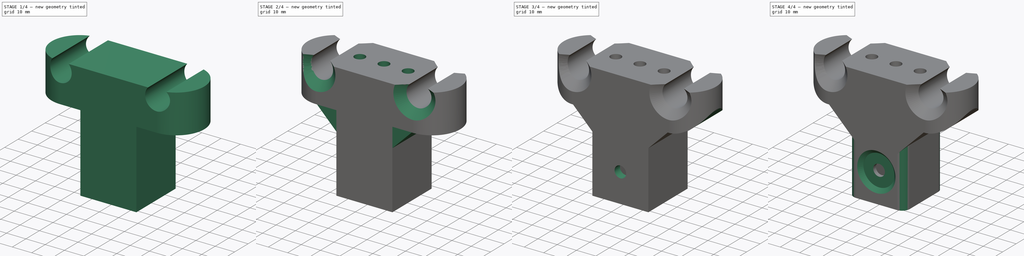
[diagram: build sequence overview — one tinted view per stage of 4, left to right]
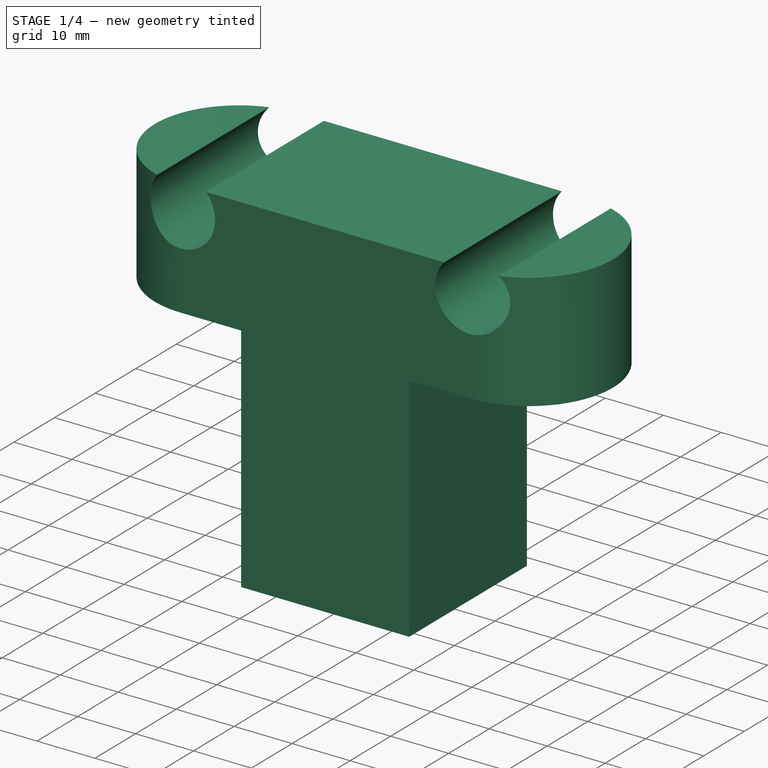
[diagram: stage 1 of 4 — iso view after this stage's code; geometry added in this stage tinted green]
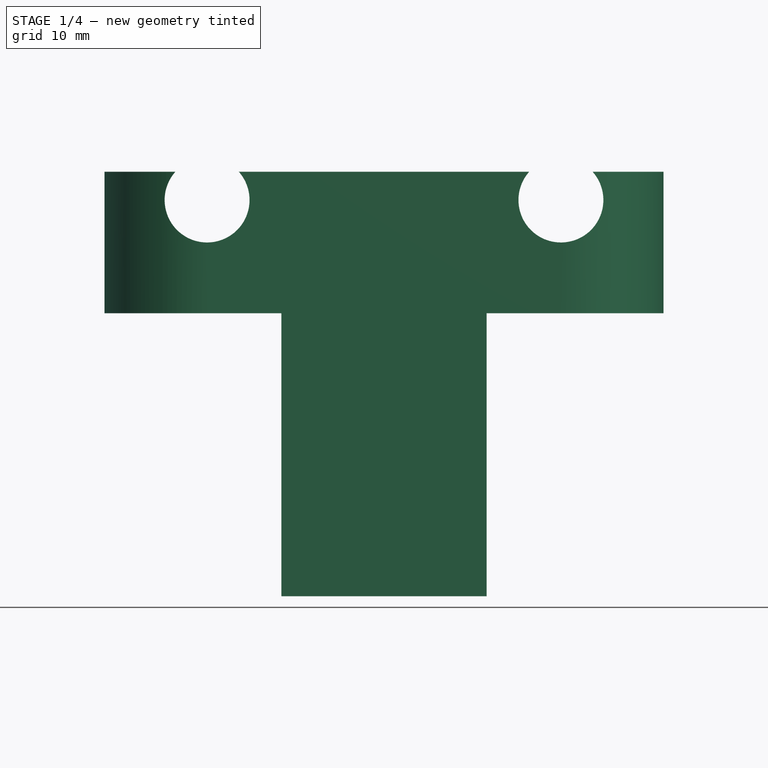
[diagram: stage 1 of 4 — front view after this stage's code; geometry added in this stage tinted green]
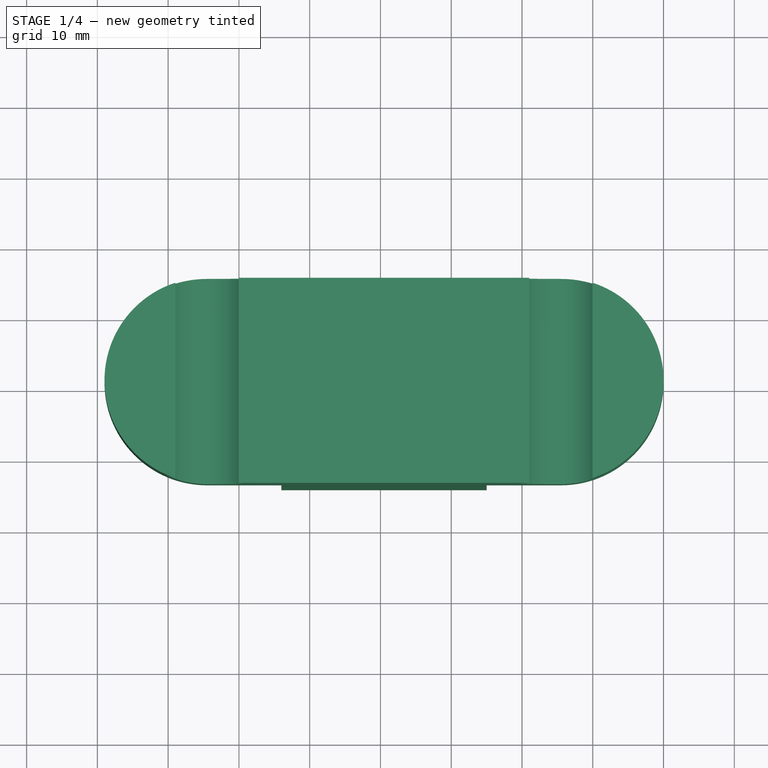
[diagram: stage 1 of 4 — top view after this stage's code; geometry added in this stage tinted green]
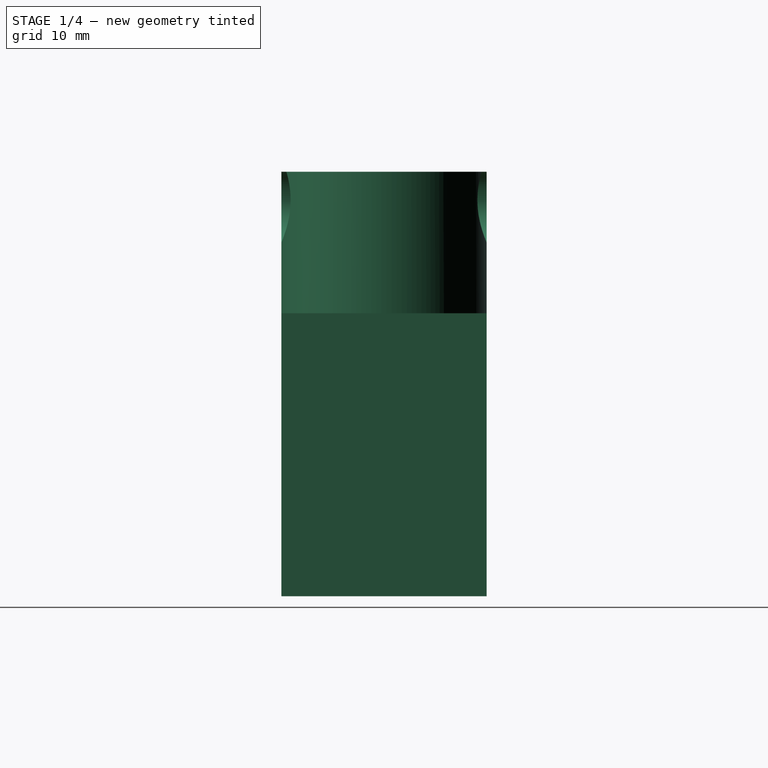
[diagram: stage 1 of 4 — right view after this stage's code; geometry added in this stage tinted green]
FCSTD DOCUMENT  (FreeCAD 0.16R5861 (Git))
Label: harness_holder_bottom_v1.0
License: All rights reserved
LicenseURL: http://en.wikipedia.org/wiki/All_rights_reserved
objects: Sketcher::SketchObject×8, PartDesign::Pocket×6, PartDesign::Chamfer×4, PartDesign::Pad×2, PartDesign::Fillet×1
note: 29 computed .brp shape members not serialized (recipe doc carries the construction recipe); baked Part::Feature solids carry a one-line shape summary decoded from their .brp

FEATURE [Sketcher::SketchObject] Sketch
  sketch-geometry (8):
    g0: LineSegment StartX=0 StartY=0 StartZ=0 EndX=21 EndY=0 EndZ=0
    g1: LineSegment StartX=21 StartY=0 StartZ=0 EndX=21 EndY=21 EndZ=0
    g2: LineSegment StartX=21 StartY=21 StartZ=0 EndX=0 EndY=21 EndZ=0
    g3: LineSegment StartX=0 StartY=21 StartZ=0 EndX=0 EndY=0 EndZ=0
    g4: LineSegment StartX=-4 StartY=-4 StartZ=0 EndX=25 EndY=-4 EndZ=0
    g5: LineSegment StartX=25 StartY=-4 StartZ=0 EndX=25 EndY=25 EndZ=0
    g6: LineSegment StartX=25 StartY=25 StartZ=0 EndX=-4 EndY=25 EndZ=0
    g7: LineSegment StartX=-4 StartY=25 StartZ=0 EndX=-4 EndY=-4 EndZ=0
  constraints (23):
    c: Coincident(g0,g1)
    c: Coincident(g1,g2)
    c: Coincident(g2,g3)
    c: Coincident(g3,g0)
    c: Horizontal(g0)
    c: Horizontal(g2)
    c: Vertical(g1)
    c: Vertical(g3)
    c: Coincident(g0,g-1)
    c: Equal(g3,g2)
    c: DistanceX(g2) = -21
    c: Coincident(g4,g5)
    c: Coincident(g5,g6)
    c: Coincident(g6,g7)
    c: Coincident(g7,g4)
    c: Horizontal(g4)
    c: Horizontal(g6)
    c: Vertical(g5)
    c: Vertical(g7)
    c: DistanceX(g4) = -4
    c: DistanceY(g4) = -4
    c: DistanceX(g4) = 29
    c: Equal(g7,g4)
FEATURE [PartDesign::Pad] Pad
  Length = 40
  Length2 = 100
  Sketch = -> Sketch
  Type = 0
FEATURE [Sketcher::SketchObject] Sketch001
  ExternalGeometry = -> [Pad]
  Placement = pos=(0,0,40) rot=(0,0,1;0rad)
  Support = -> Pad [Face10]
  sketch-geometry (8):
    g0: ArcOfCircle CenterX=-14.5 CenterY=10.5 CenterZ=0 NormalX=0 NormalY=0 NormalZ=1 Radius=14.5 StartAngle=1.5708 EndAngle=4.71239
    g1: ArcOfCircle CenterX=35.5 CenterY=10.5 CenterZ=0 NormalX=0 NormalY=0 NormalZ=1 Radius=14.5 StartAngle=4.71239 EndAngle=7.85398
    g2: LineSegment StartX=-14.5 StartY=-4 StartZ=0 EndX=35.5 EndY=-4 EndZ=0
    g3: LineSegment StartX=-14.5 StartY=25 StartZ=0 EndX=35.5 EndY=25 EndZ=0
    g4: LineSegment [constr] StartX=-4 StartY=25 StartZ=0 EndX=10.5 EndY=10.5 EndZ=0
    g5: LineSegment [constr] StartX=10.5 StartY=10.5 StartZ=0 EndX=25 EndY=-4 EndZ=0
    g6: LineSegment [constr] StartX=-14.5 StartY=10.5 StartZ=0 EndX=10.5 EndY=10.5 EndZ=0
    g7: LineSegment [constr] StartX=10.5 StartY=10.5 StartZ=0 EndX=35.5 EndY=10.5 EndZ=0
  constraints (19):
    c: Tangent(g0,g3) = 1.5708
    c: Tangent(g0,g2) = -1.5708
    c: Tangent(g2,g1) = -1.5708
    c: Tangent(g3,g1) = 1.5708
    c: Horizontal(g2)
    c: Equal(g0,g1)
    c: PointOnObject(g-3,g3)
    c: PointOnObject(g-4,g2)
    c: Coincident(g-3,g4)
    c: Coincident(g4,g5)
    c: Coincident(g5,g-4)
    c: Equal(g5,g4)
    c: PointOnObject(g5,g4)
    c: Coincident(g6,g0)
    c: Coincident(g6,g4)
    c: Coincident(g6,g7)
    c: Coincident(g7,g1)
    c: Equal(g6,g7)
    c: DistanceX(g0,g1) = 50
FEATURE [PartDesign::Pad] Pad001
  Length = 20
  Length2 = 100
  Sketch = -> Sketch001
  Type = 0
FEATURE [Sketcher::SketchObject] Sketch002
  ExternalGeometry = -> [Pad001]
  Placement = pos=(0,-4,0) rot=(1,0,0;1.5708rad)
  Support = -> Pad001 [Face10]
  sketch-geometry (2):
    g0: Circle CenterX=-14.5 CenterY=56 CenterZ=0 NormalX=0 NormalY=0 NormalZ=1 Radius=6
    g1: Circle CenterX=35.5 CenterY=56 CenterZ=0 NormalX=0 NormalY=0 NormalZ=1 Radius=6
  constraints (6):
    c: PointOnObject(g0,g-4)
    c: PointOnObject(g1,g-5)
    c: Equal(g1,g0)
    c: Radius(g0) = 6
    c: DistanceY(g0,g-4) = 4
    c: DistanceY(g1,g-5) = 4
FEATURE [PartDesign::Pocket] Pocket
  Length = 5
  Sketch = -> Sketch002
  Type = 1
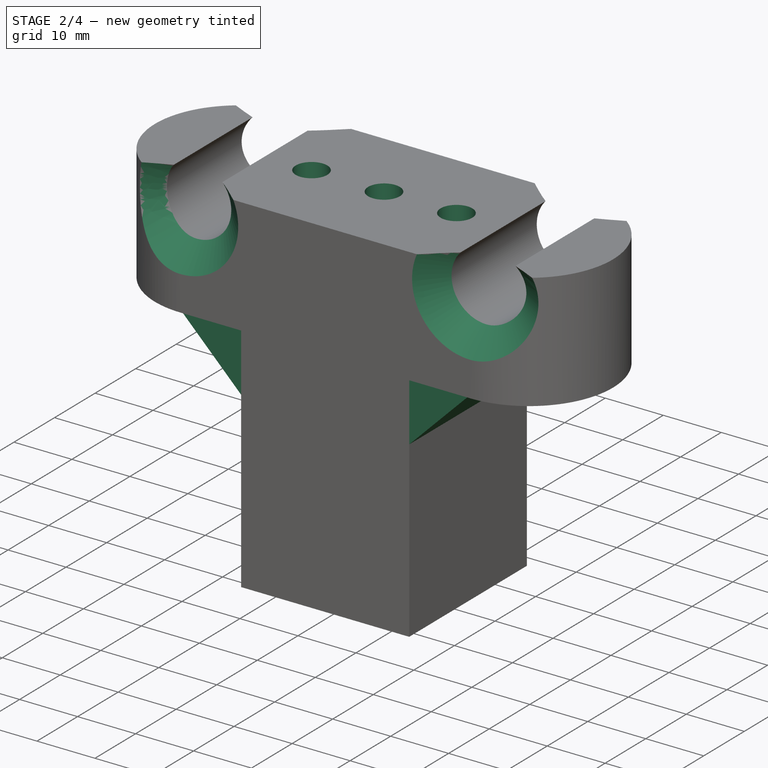
[diagram: stage 2 of 4 — iso view after this stage's code; geometry added in this stage tinted green]
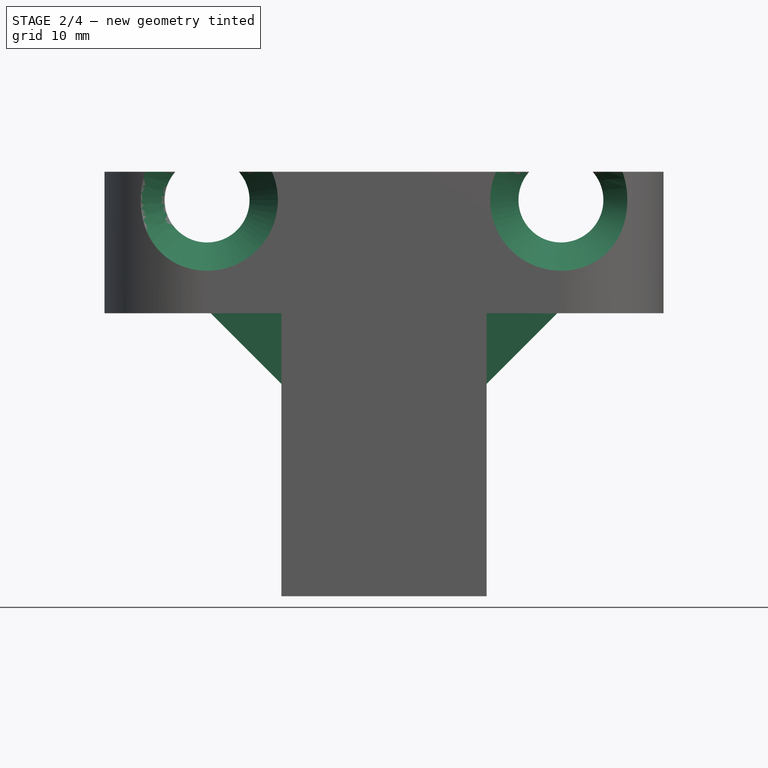
[diagram: stage 2 of 4 — front view after this stage's code; geometry added in this stage tinted green]
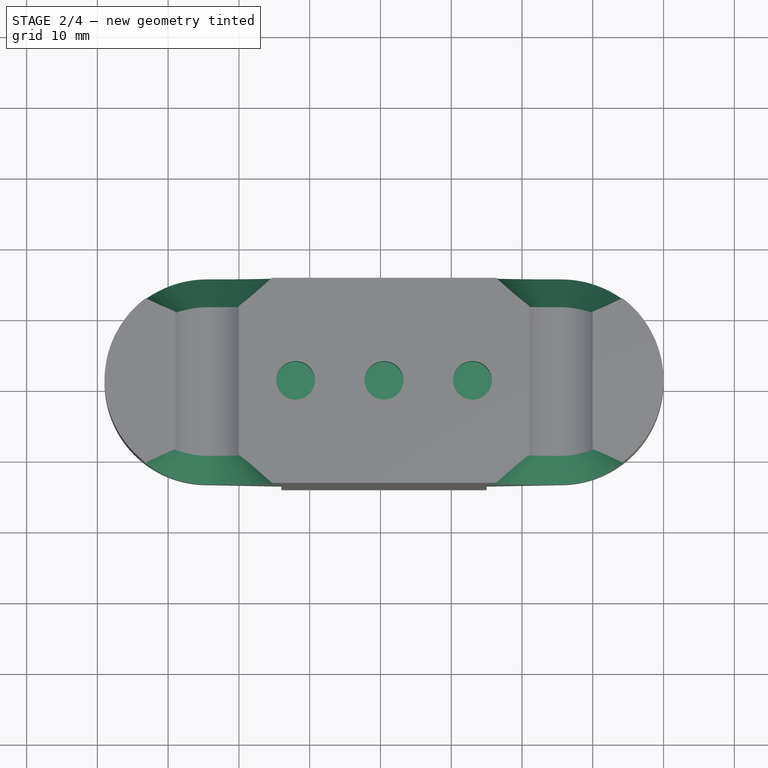
[diagram: stage 2 of 4 — top view after this stage's code; geometry added in this stage tinted green]
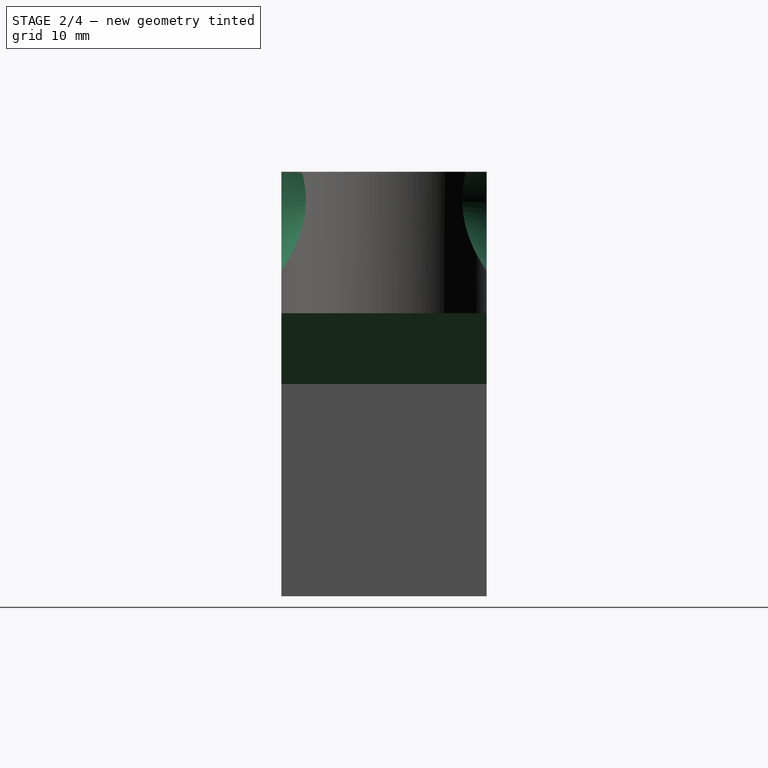
[diagram: stage 2 of 4 — right view after this stage's code; geometry added in this stage tinted green]
FEATURE [PartDesign::Chamfer] Chamfer
  Base = -> Pocket [Edge16,Edge12]
  Size = 10
FEATURE [PartDesign::Chamfer] Chamfer001
  Base = -> Chamfer [Edge22,Edge27,Edge50,Edge65]
  Size = 4
FEATURE [Sketcher::SketchObject] Sketch003
  ExternalGeometry = -> [Chamfer001]
  Placement = pos=(0,0,60) rot=(0,0,1;0rad)
  Support = -> Chamfer001 [Face7]
  sketch-geometry (7):
    g0: LineSegment [constr] StartX=-10.0279 StartY=21 StartZ=0 EndX=10.5 EndY=10.5 EndZ=0
    g1: LineSegment [constr] StartX=10.5 StartY=10.5 StartZ=0 EndX=31.0279 EndY=0 EndZ=0
    g2: Circle CenterX=10.5 CenterY=10.5 CenterZ=0 NormalX=0 NormalY=0 NormalZ=1 Radius=2.73
    g3: LineSegment [constr] StartX=10.5 StartY=10.5 StartZ=0 EndX=-2 EndY=10.5 EndZ=0
    g4: LineSegment [constr] StartX=10.5 StartY=10.5 StartZ=0 EndX=23 EndY=10.5 EndZ=0
    g5: Circle CenterX=-2 CenterY=10.5 CenterZ=0 NormalX=0 NormalY=0 NormalZ=1 Radius=2.73
    g6: Circle CenterX=23 CenterY=10.5 CenterZ=0 NormalX=0 NormalY=0 NormalZ=1 Radius=2.73
  constraints (17):
    c: Coincident(g-3,g0)
    c: Coincident(g0,g1)
    c: Coincident(g1,g-4)
    c: Equal(g1,g0)
    c: PointOnObject(g0,g1)
    c: Coincident(g2,g0)
    c: Coincident(g3,g0)
    c: Horizontal(g3)
    c: Coincident(g4,g0)
    c: Horizontal(g4)
    c: Equal(g4,g3)
    c: Coincident(g5,g3)
    c: Coincident(g6,g4)
    c: Equal(g5,g2)
    c: Equal(g2,g6)
    c: Radius(g2) = 2.73
    c: DistanceX(g3) = -12.5
FEATURE [PartDesign::Pocket] Pocket001
  Length = 7
  Sketch = -> Sketch003
  Type = 0
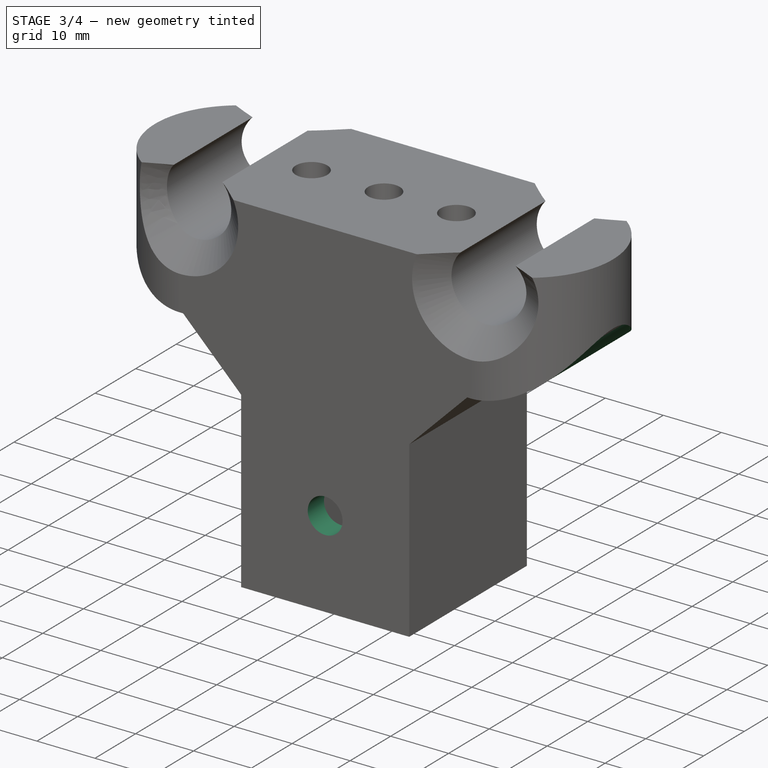
[diagram: stage 3 of 4 — iso view after this stage's code; geometry added in this stage tinted green]
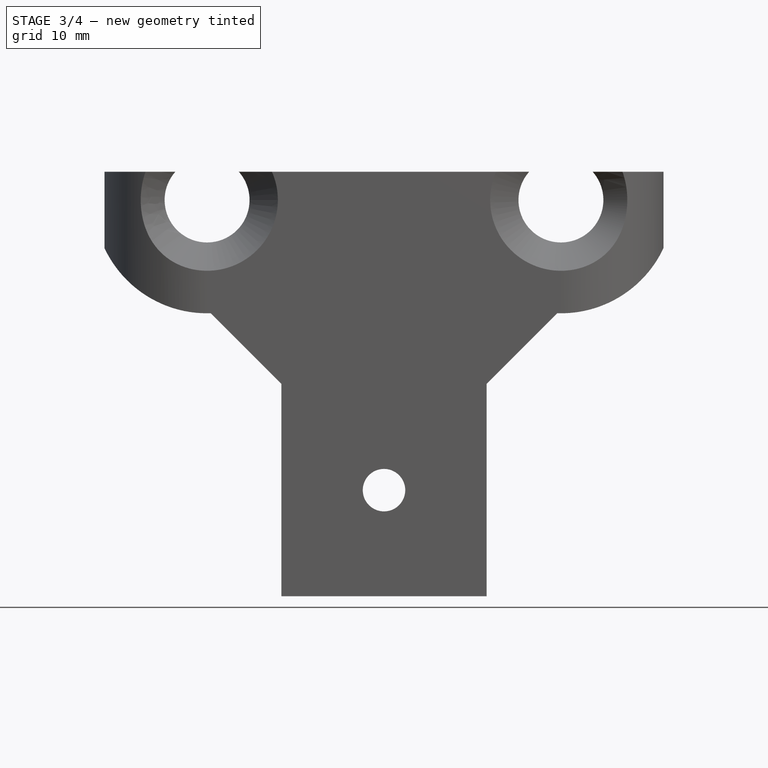
[diagram: stage 3 of 4 — front view after this stage's code; geometry added in this stage tinted green]
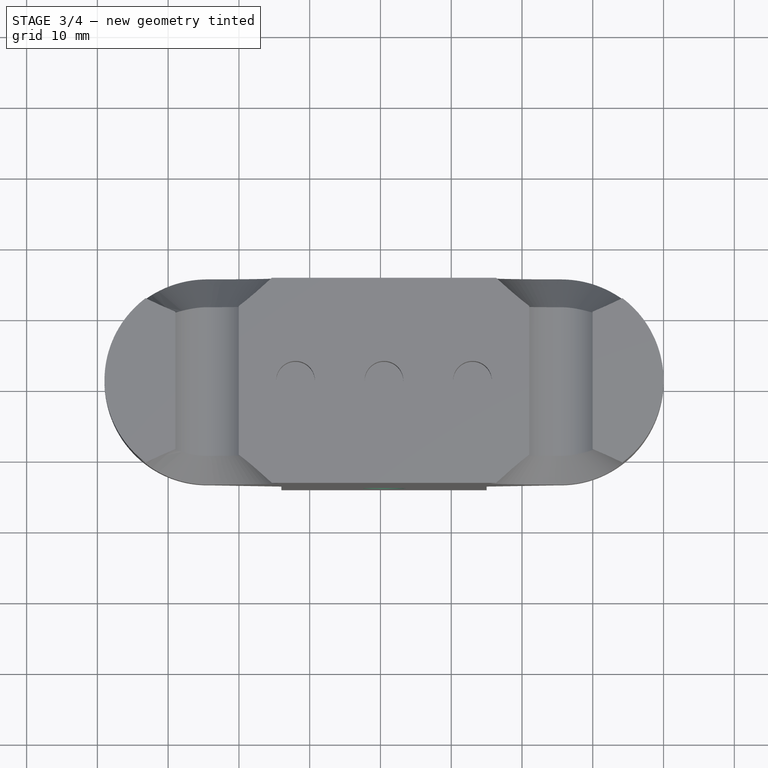
[diagram: stage 3 of 4 — top view after this stage's code; geometry added in this stage tinted green]
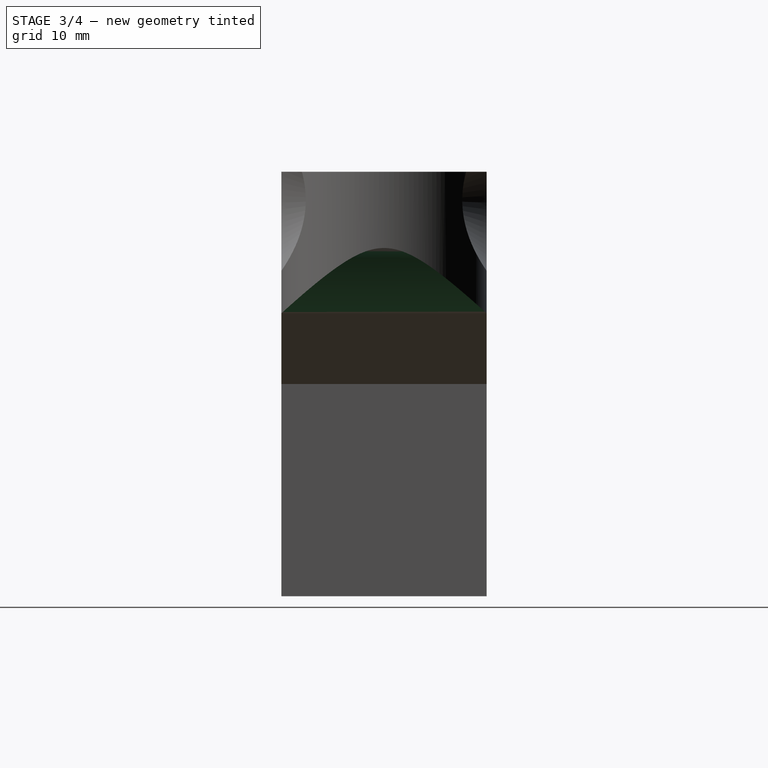
[diagram: stage 3 of 4 — right view after this stage's code; geometry added in this stage tinted green]
FEATURE [Sketcher::SketchObject] Sketch004
  ExternalGeometry = -> [Pocket001]
  Placement = pos=(0,-4,0) rot=(1,0,0;1.5708rad)
  Support = -> Pocket001 [Face1]
  sketch-geometry (6):
    g0: ArcOfCircle CenterX=-14.5 CenterY=56 CenterZ=0 NormalX=0 NormalY=0 NormalZ=1 Radius=16.0078 StartAngle=3.14159 EndAngle=4.74363
    g1: LineSegment StartX=-14 StartY=40 StartZ=0 EndX=-30.5078 EndY=40 EndZ=0
    g2: LineSegment StartX=-30.5078 StartY=40 StartZ=0 EndX=-30.5078 EndY=56 EndZ=0
    g3: ArcOfCircle CenterX=35.5 CenterY=56 CenterZ=0 NormalX=0 NormalY=0 NormalZ=1 Radius=16.0078 StartAngle=4.68115 EndAngle=6.28318
    g4: LineSegment StartX=35 StartY=40 StartZ=0 EndX=51.5078 EndY=40 EndZ=0
    g5: LineSegment StartX=51.5078 StartY=40 StartZ=0 EndX=51.5078 EndY=56 EndZ=0
  constraints (16):
    c: Coincident(g0,g-4)
    c: Coincident(g0,g-5)
    c: Coincident(g0,g1)
    c: Coincident(g1,g2)
    c: Coincident(g2,g0)
    c: Vertical(g2)
    c: Horizontal(g1)
    c: Tangent(g0,g2)
    c: Coincident(g3,g-3)
    c: Coincident(g3,g-6)
    c: Coincident(g3,g4)
    c: Coincident(g4,g5)
    c: Coincident(g5,g3)
    c: Vertical(g5)
    c: Horizontal(g4)
    c: Tangent(g5,g3)
FEATURE [PartDesign::Pocket] Pocket002
  Length = 3
  Sketch = -> Sketch004
  Type = 1
FEATURE [Sketcher::SketchObject] Sketch005
  ExternalGeometry = -> [Pocket002]
  Placement = pos=(0,25,0) rot=(0,0.707107,0.707107;3.14159rad)
  Support = -> Pocket002 [Face36]
  sketch-geometry (3):
    g0: LineSegment [constr] StartX=-25 StartY=30 StartZ=0 EndX=-10.5 EndY=15 EndZ=0
    g1: LineSegment [constr] StartX=-10.5 StartY=15 StartZ=0 EndX=4 EndY=0 EndZ=0
    g2: Circle CenterX=-10.5 CenterY=15 CenterZ=0 NormalX=0 NormalY=0 NormalZ=1 Radius=3
  constraints (7):
    c: Coincident(g-4,g0)
    c: Coincident(g0,g1)
    c: Coincident(g1,g-3)
    c: Equal(g1,g0)
    c: PointOnObject(g1,g0)
    c: Coincident(g2,g0)
    c: Radius(g2) = 3
FEATURE [PartDesign::Pocket] Pocket003
  Length = 5
  Sketch = -> Sketch005
  Type = 1
FEATURE [Sketcher::SketchObject] Sketch006
  ExternalGeometry = -> [Pocket003]
  Placement = pos=(0,25,0) rot=(0,0.707107,0.707107;3.14159rad)
  Support = -> Pocket003 [Face37]
  sketch-geometry (1):
    g0: Circle CenterX=-10.5 CenterY=15 CenterZ=0 NormalX=0 NormalY=0 NormalZ=1 Radius=8
  constraints (2):
    c: Coincident(g0,g-3)
    c: Radius(g0) = 8
FEATURE [PartDesign::Pocket] Pocket004
  Length = 2
  Sketch = -> Sketch006
  Type = 0
FEATURE [PartDesign::Chamfer] Chamfer002
  Base = -> Pocket004 [Edge106]
  Size = 1.9
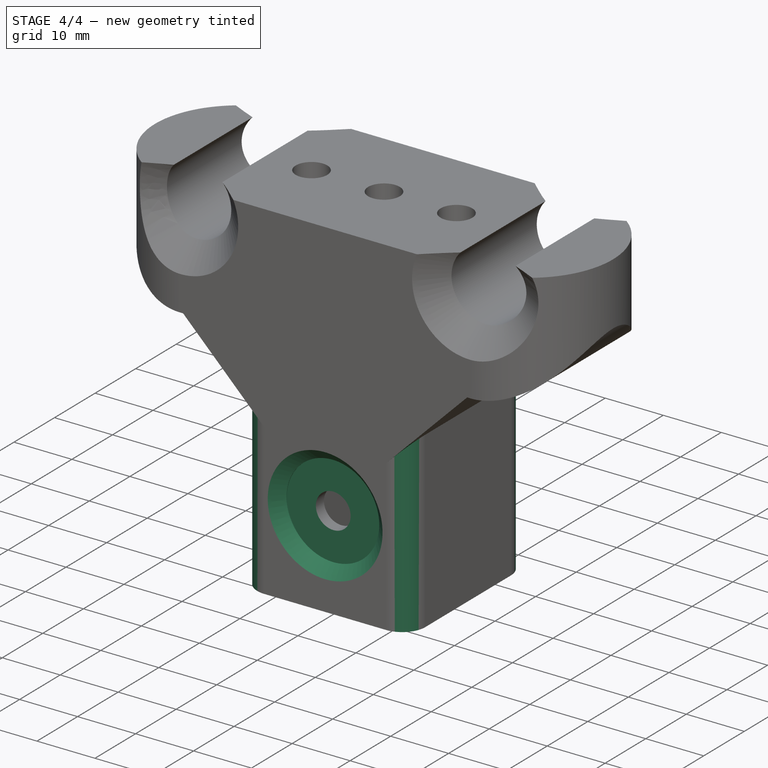
[diagram: stage 4 of 4 — iso view after this stage's code; geometry added in this stage tinted green]
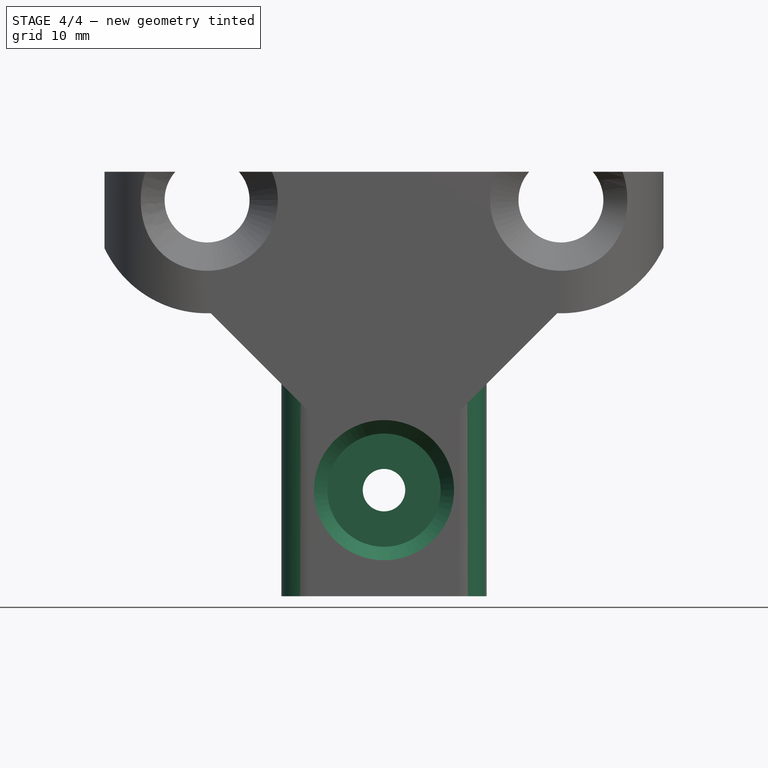
[diagram: stage 4 of 4 — front view after this stage's code; geometry added in this stage tinted green]
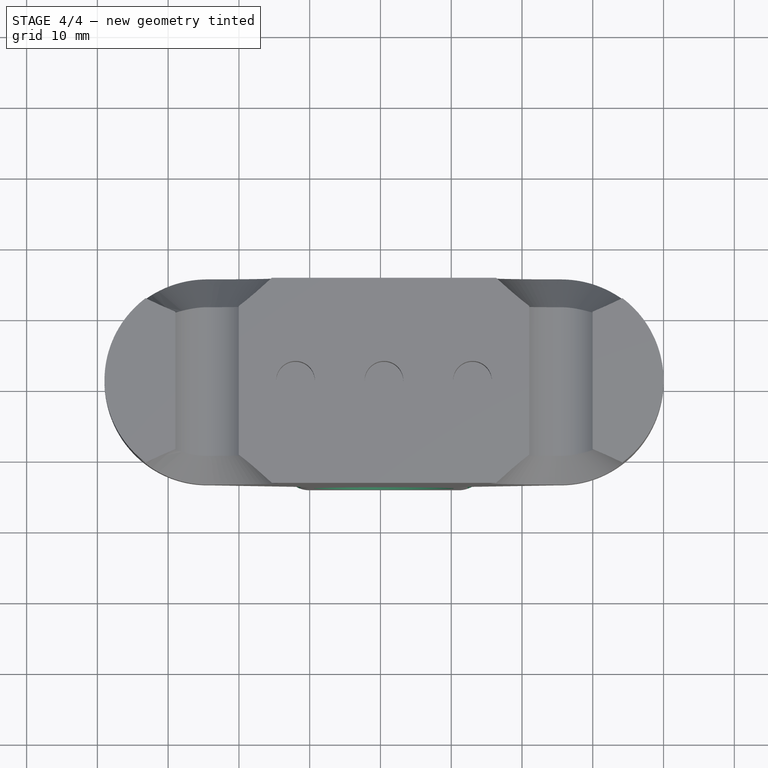
[diagram: stage 4 of 4 — top view after this stage's code; geometry added in this stage tinted green]
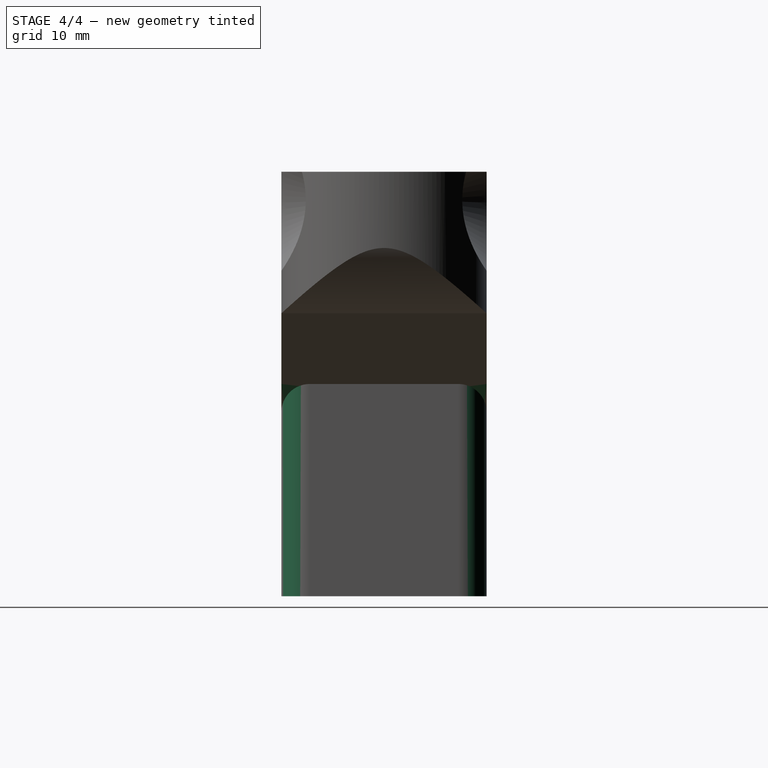
[diagram: stage 4 of 4 — right view after this stage's code; geometry added in this stage tinted green]
FEATURE [Sketcher::SketchObject] Sketch007
  ExternalGeometry = -> [Chamfer002]
  Placement = pos=(0,-4,0) rot=(1,0,0;1.5708rad)
  Support = -> Chamfer002 [Face10]
  sketch-geometry (1):
    g0: Circle CenterX=10.5 CenterY=15 CenterZ=0 NormalX=0 NormalY=0 NormalZ=1 Radius=8
  constraints (2):
    c: Coincident(g0,g-3)
    c: Radius(g0) = 8
FEATURE [PartDesign::Pocket] Pocket005
  Length = 2
  Sketch = -> Sketch007
  Type = 0
FEATURE [PartDesign::Chamfer] Chamfer003
  Base = -> Pocket005 [Edge40]
  Size = 1.9
FEATURE [PartDesign::Fillet] Fillet
  Base = -> Chamfer003 [Edge6,Edge32,Edge12,Edge2]
  Radius = 4
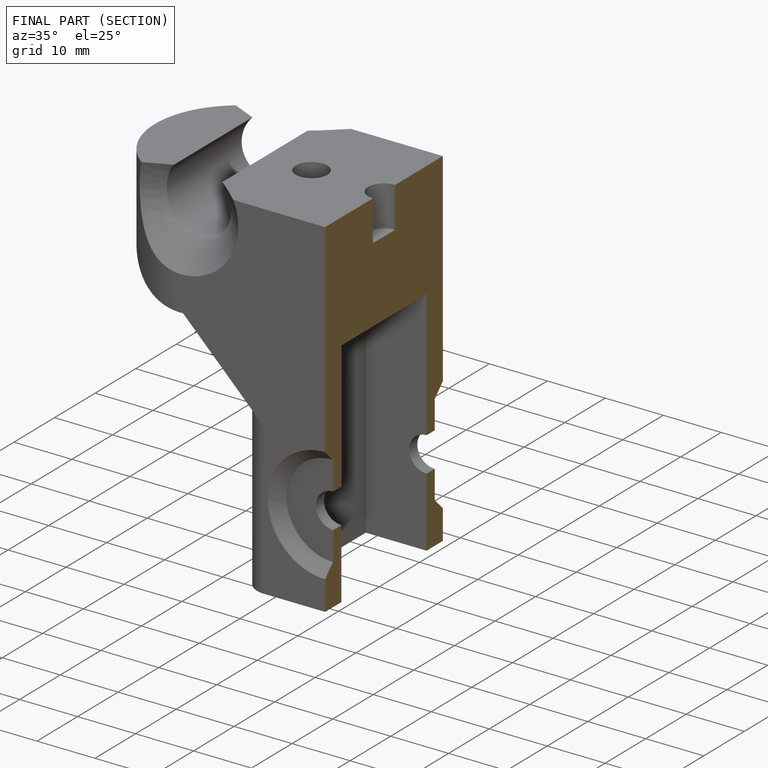
[diagram: finished part — half-section view (interior)]
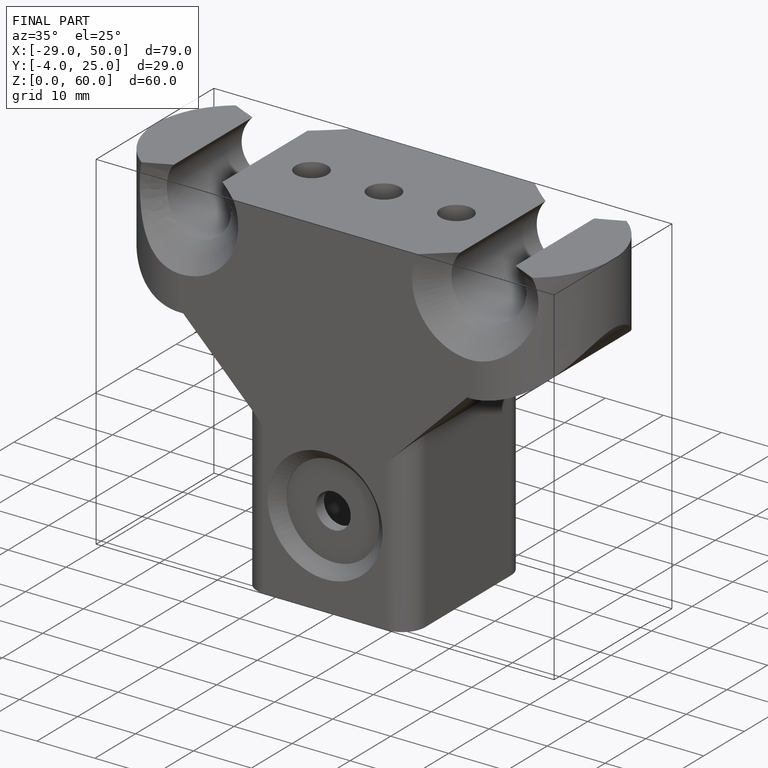
[diagram: finished part — iso view with bounding-box wireframe]
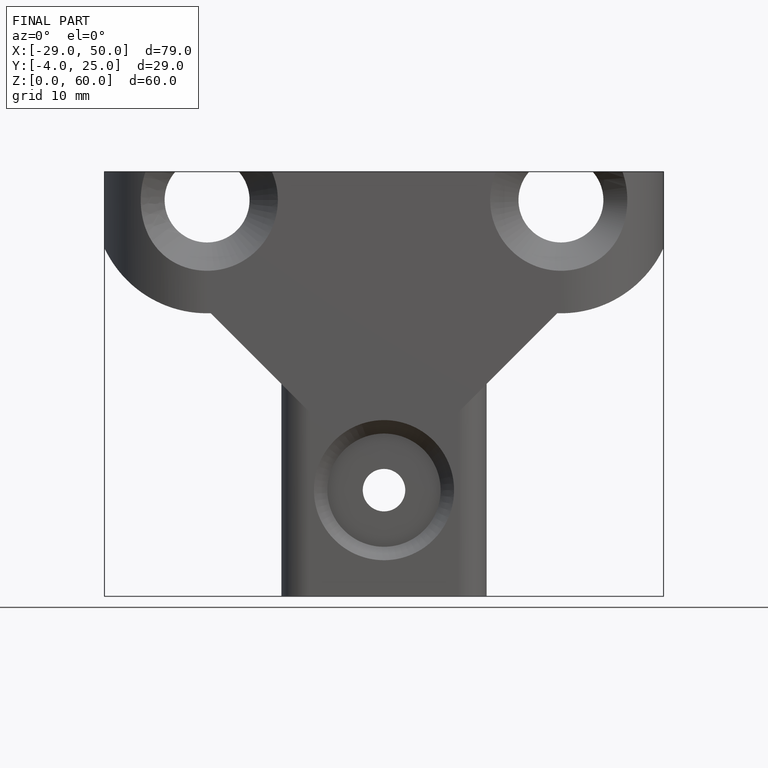
[diagram: finished part — front view with bounding-box wireframe]
